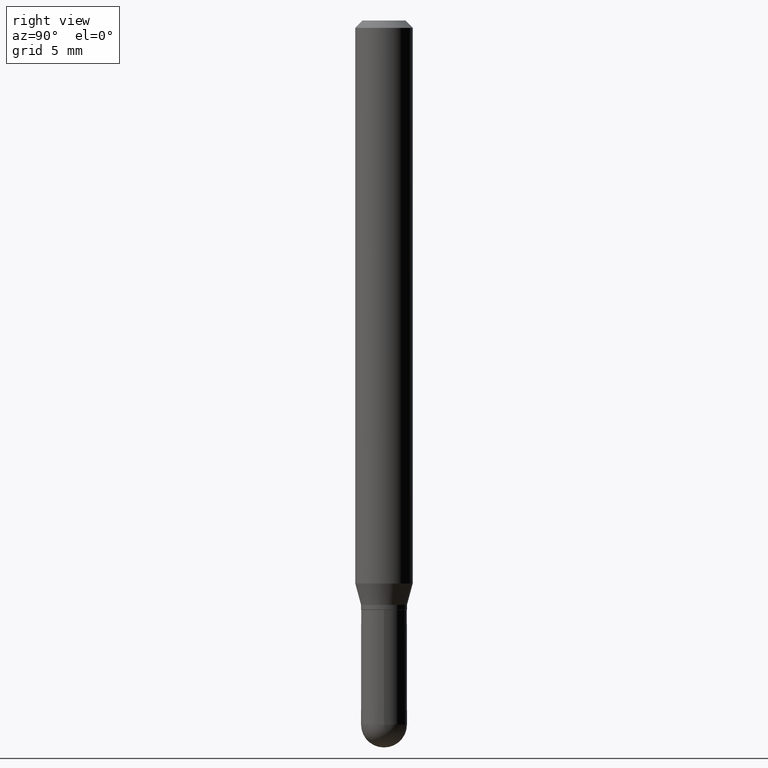
[diagram: clean part render]
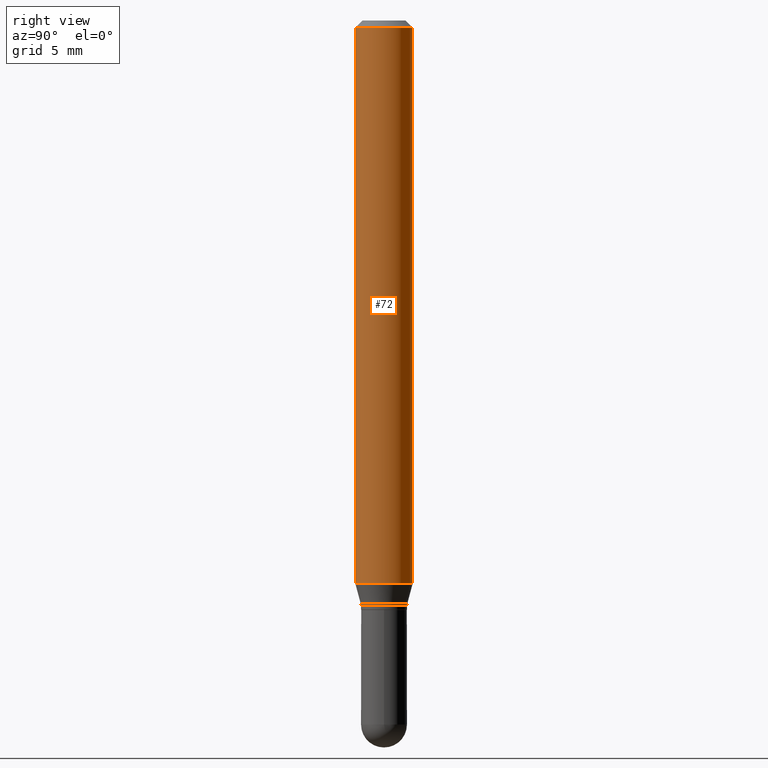
[diagram: same view with one face highlighted and labeled with its STEP entity id]
A machine part, right view. The second image highlights one B-rep face of the part: STEP entity #72.
In plain terms, the highlighted cylindrical surface (edge-blend (fillet) strip) has radius 1.4999 mm, axis along (-0, 0, 1).
Its self-contained STEP definition (entity closure, byte-faithful):
#5 = EDGE_LOOP ( 'NONE', ( #82, #492, #133, #284 ) ) ;
#33 = EDGE_CURVE ( 'NONE', #278, #147, #214, .T. ) ;
#36 = CARTESIAN_POINT ( 'NONE',  ( 4.195754854663390985E-16, 0.05904999999999999832, -2.061755595685950355E-16 ) ) ;
#48 = DIRECTION ( 'NONE',  ( -2.445426393882298514E-29, 3.491542075674767907E-15, 1.000000000000000000 ) ) ;
#52 = CYLINDRICAL_SURFACE ( 'NONE', #187, 0.05904999999999999832 ) ;
#70 = CARTESIAN_POINT ( 'NONE',  ( 3.668139590823469947E-31, -5.237313113512184524E-17, -0.01500000000000009139 ) ) ;
#72 = ADVANCED_FACE ( 'NONE', ( #257 ), #52, .T. ) ;
#75 = DIRECTION ( 'NONE',  ( -2.445426393882298514E-29, 3.491542075674767907E-15, 1.000000000000000000 ) ) ;
#82 = ORIENTED_EDGE ( 'NONE', *, *, #320, .T. ) ;
#85 = CARTESIAN_POINT ( 'NONE',  ( -4.123439461173456337E-16, -0.05905000000000405758, -1.158561800470687464 ) ) ;
#133 = ORIENTED_EDGE ( 'NONE', *, *, #33, .F. ) ;
#147 = VERTEX_POINT ( 'NONE', #249 ) ;
#172 = EDGE_CURVE ( 'NONE', #448, #147, #326, .T. ) ;
#175 = LINE ( 'NONE', #407, #507 ) ;
#187 = AXIS2_PLACEMENT_3D ( 'NONE', #261, #348, #383 ) ;
#204 = DIRECTION ( 'NONE',  ( -2.445426393882298514E-29, 3.491542075674767907E-15, 1.000000000000000000 ) ) ;
#214 = CIRCLE ( 'NONE', #225, 0.05904999999999999832 ) ;
#220 = CARTESIAN_POINT ( 'NONE',  ( 2.833177605814816812E-29, -4.045167273612921332E-15, -1.158561800470687464 ) ) ;
#225 = AXIS2_PLACEMENT_3D ( 'NONE', #70, #505, #319 ) ;
#249 = CARTESIAN_POINT ( 'NONE',  ( 4.195754854663675961E-16, 0.05904999999999994281, -0.01500000000000029955 ) ) ;
#257 = FACE_OUTER_BOUND ( 'NONE', #5, .T. ) ;
#261 = CARTESIAN_POINT ( 'NONE',  ( 0.000000000000000000, 0.000000000000000000, 0.000000000000000000 ) ) ;
#278 = VERTEX_POINT ( 'NONE', #465 ) ;
#284 = ORIENTED_EDGE ( 'NONE', *, *, #510, .F. ) ;
#319 = DIRECTION ( 'NONE',  ( -6.982962677686265922E-15, -1.000000000000000000, 3.505890868245046092E-15 ) ) ;
#320 = EDGE_CURVE ( 'NONE', #330, #448, #420, .T. ) ;
#326 = LINE ( 'NONE', #36, #378 ) ;
#330 = VERTEX_POINT ( 'NONE', #85 ) ;
#348 = DIRECTION ( 'NONE',  ( -2.445426393882298514E-29, 3.491542075674767907E-15, 1.000000000000000000 ) ) ;
#378 = VECTOR ( 'NONE', #48, 39.37007874015748143 ) ;
#383 = DIRECTION ( 'NONE',  ( -6.982962677686265922E-15, -1.000000000000000000, 3.491542075674767907E-15 ) ) ;
#395 = AXIS2_PLACEMENT_3D ( 'NONE', #220, #75, #402 ) ;
#402 = DIRECTION ( 'NONE',  ( -6.982962677686265922E-15, -1.000000000000000000, 4.626330217890369336E-15 ) ) ;
#407 = CARTESIAN_POINT ( 'NONE',  ( -4.123439461173739834E-16, -0.05904999999999999832, 2.061755595685950355E-16 ) ) ;
#420 = CIRCLE ( 'NONE', #395, 0.05904999999999999832 ) ;
#447 = CARTESIAN_POINT ( 'NONE',  ( 4.195754854663673496E-16, 0.05904999999999594601, -1.158561800470687686 ) ) ;
#448 = VERTEX_POINT ( 'NONE', #447 ) ;
#465 = CARTESIAN_POINT ( 'NONE',  ( -4.123439461173736383E-16, -0.05905000000000005383, -0.01499999999999988495 ) ) ;
#492 = ORIENTED_EDGE ( 'NONE', *, *, #172, .T. ) ;
#505 = DIRECTION ( 'NONE',  ( -2.445426393882298514E-29, 3.491542075674767907E-15, 1.000000000000000000 ) ) ;
#507 = VECTOR ( 'NONE', #204, 39.37007874015748143 ) ;
#510 = EDGE_CURVE ( 'NONE', #330, #278, #175, .T. ) ;